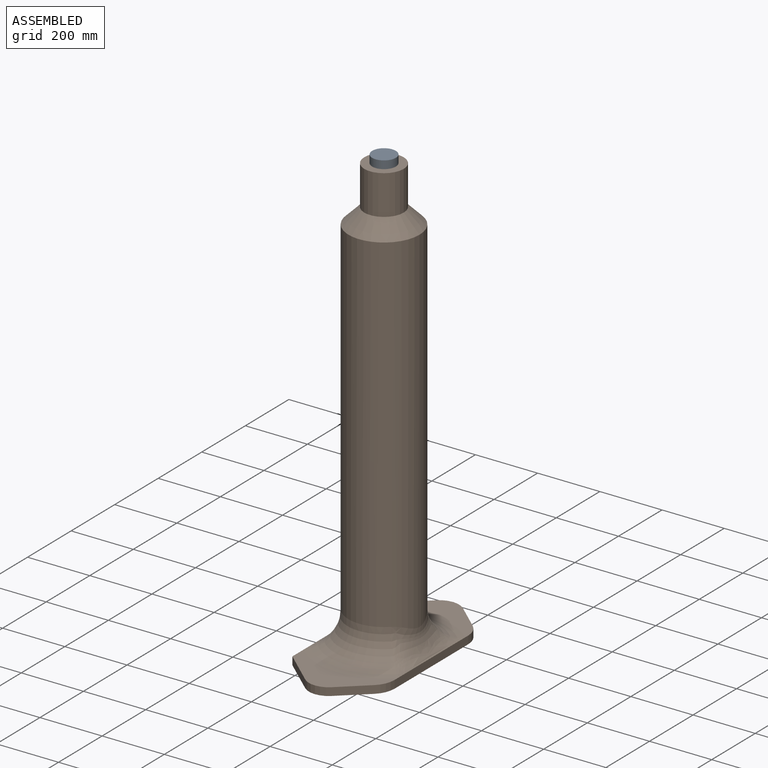
[diagram: assembled view]
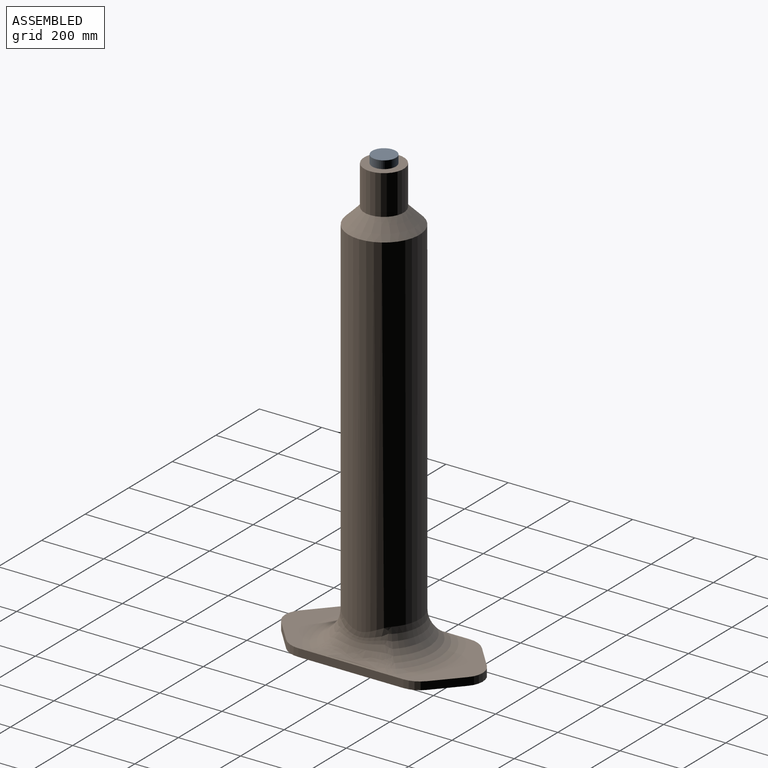
[diagram: assembled view, second angle]
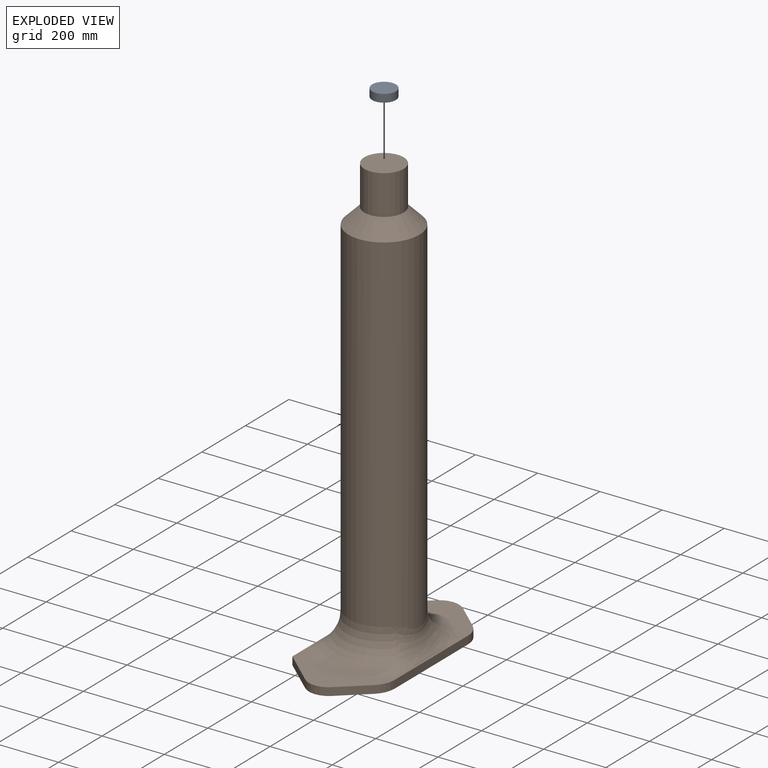
[diagram: exploded view]
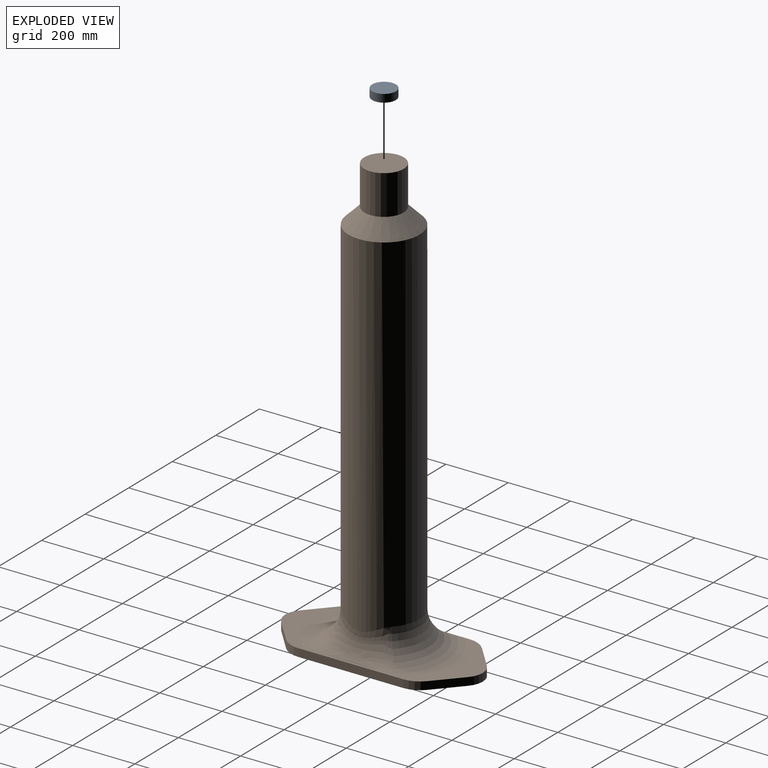
[diagram: exploded view, second angle]
ASSEMBLY  parts=2 mates=2
PART A: 3 faces, bbox 76.2x76.2x25.4 mm
  f0: cylinder r=38.1mm len=76.2mm, axis (0,0,-1), area 6080.5mm2, adj f1,f2
  f1: plane 76.2x76.2mm, normal (0,0,1), area 4560.4mm2, adj f0
  f2: plane 76.2x76.2mm, normal (0,0,-1), area 4560.4mm2, adj f0
PART B: 24 faces, bbox 440.1x635x1422.4 mm
  f0: plane 304.8x164.57mm, normal (0,0,1), area 21992.3mm2, adj f4,f5,f6,f7,f8,f16,f19
  f1: plane 84.65x75.47mm, normal (0.67,0.75,0), area 2880.6mm2, adj f2,f9,f10,f17
  f2: cylinder r=63.5mm len=84.52mm, axis (0,0,-1), area 2348.8mm2, adj f1,f3,f9,f10
  f3: plane 84.65x75.47mm, normal (-0.67,0.75,0), area 2880.6mm2, adj f2,f9,f10,f15
  f4: plane 372.25x25.4mm, normal (-1,0,0), area 9455.1mm2, adj f0,f5,f9,f10,f15,f18
  f5: plane 110.14x98.2mm, normal (-0.67,-0.75,0), area 3748mm2, adj f0,f4,f6,f10
  f6: cylinder r=63.5mm len=84.52mm, axis (0,0,-1), area 2348.8mm2, adj f0,f5,f7,f10
  f7: plane 84.65x75.47mm, normal (0.67,-0.75,0), area 2880.6mm2, adj f0,f6,f10,f16
  f8: plane 338.1x25.4mm, normal (1,0,0), area 8587.7mm2, adj f0,f9,f10,f16,f17,f21
  f9: plane 304.8x164.57mm, normal (0,0,1), area 21836.5mm2, adj f1,f2,f3,f4,f8,f15,f17,f20
  f10: plane 635x304.8mm, normal (0,0,-1), area 150831.5mm2, adj f1,f2,f3,f4,f5,f6,f7,f8
  f11: cylinder r=114.3mm len=1139.89mm, axis (0,0,-1), area 806712.9mm2, adj f12,f18,f19,f20,f21
  f12: cone r=63.5mm half-angle=45deg, axis (0,0,-1), area 40129.2mm2, adj f11,f13
  f13: cylinder r=63.5mm len=127mm, axis (0,0,-1), area 50670.7mm2, adj f12,f14
  f14: plane 127x127mm, normal (0,0,1), area 12667.7mm2, adj f13
  f15: cylinder r=76.2mm len=56.88mm, axis (0,0,-1), area 1631mm2, adj f3,f4,f9,f10
  f16: cylinder r=76.2mm len=56.88mm, axis (0,0,-1), area 1631mm2, adj f0,f7,f8,f10
  f17: cylinder r=76.2mm len=56.88mm, axis (0,0,1), area 1631mm2, adj f1,f8,f9,f10
  f18: bspline ~313.1x104.76mm, area 24350mm2, adj f4,f11,f19,f20
  f19: torus R=215.9mm, axis (0,0,1), area 37825.4mm2, adj f0,f11,f18,f21
  f20: torus R=215.9mm, axis (0,0,1), area 37825.4mm2, adj f9,f11,f18,f21
  f21: bspline ~313.1x104.76mm, area 24350mm2, adj f8,f11,f19,f20
  f22: cylinder r=63.5mm len=1016mm, axis (0,0,-1), area 405366mm2, adj f10,f23
  f23: plane 127x127mm, normal (0,0,-1), area 12667.7mm2, adj f22
PLACE A t=(38.62,468.27,942.09)mm
PLACE B t=(38.62,468.27,-480.31)mm
MATE cylindrical B.f11 <-> A.f0  axis (0,0,-1) through (38.62,468.27,942.09)mm
MATE planar B.f11 <-> A.f0  axis (0,0,1) through (38.62,468.27,942.09)mm
